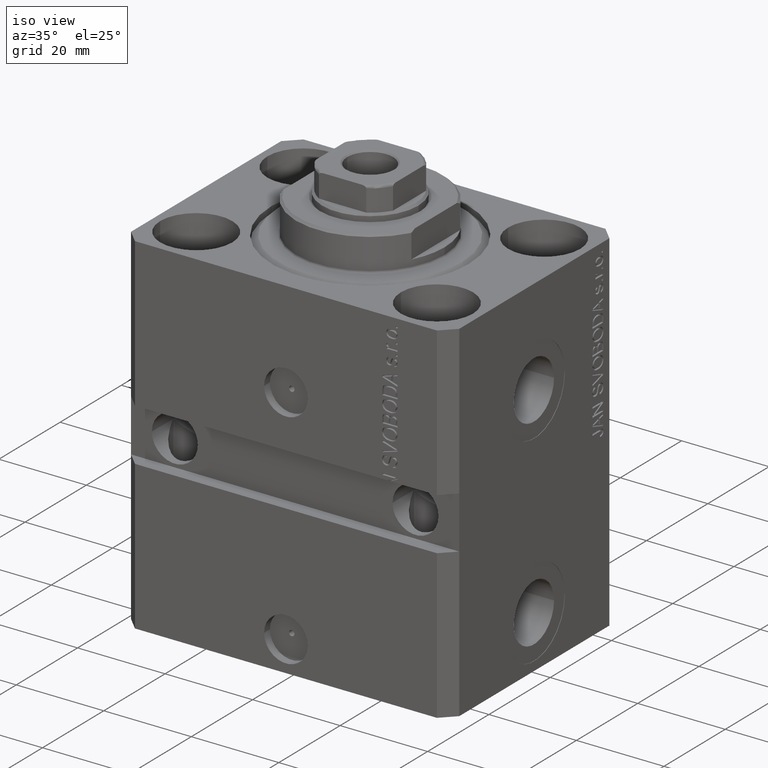
[diagram: clean part render]
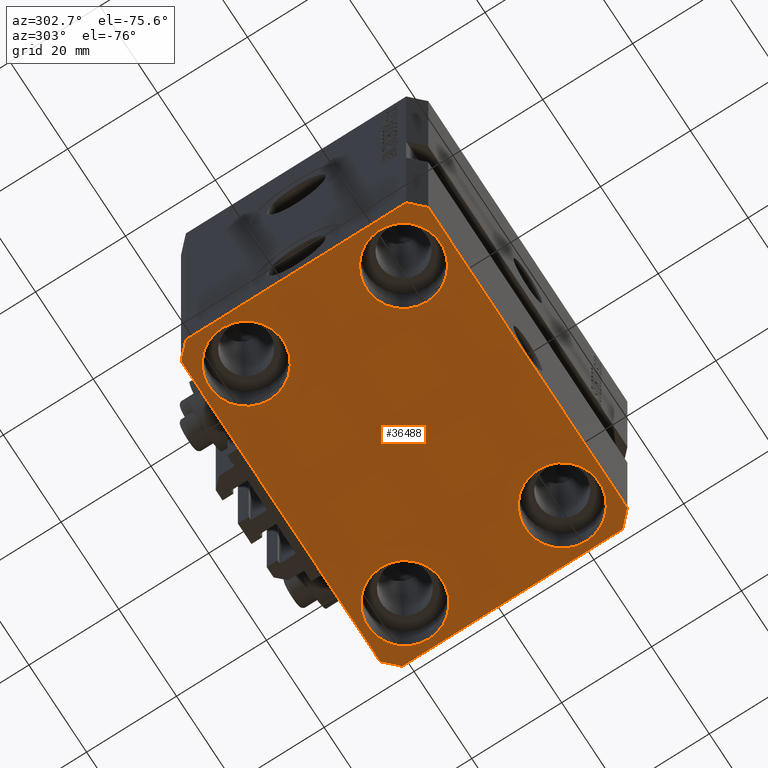
[diagram: tour spotlight — one face highlighted and labeled with its STEP entity id]
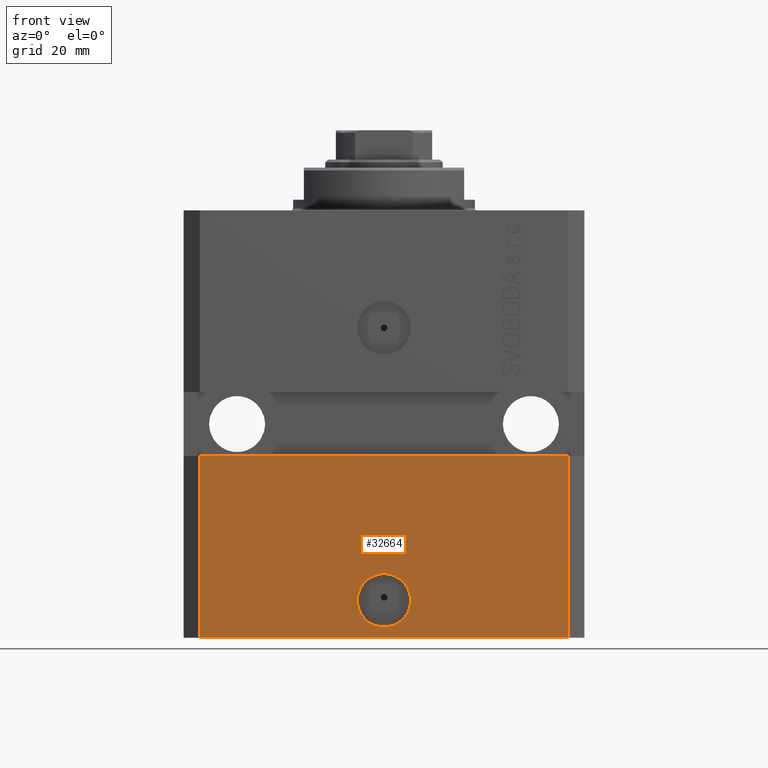
[diagram: tour spotlight — one face highlighted and labeled with its STEP entity id]
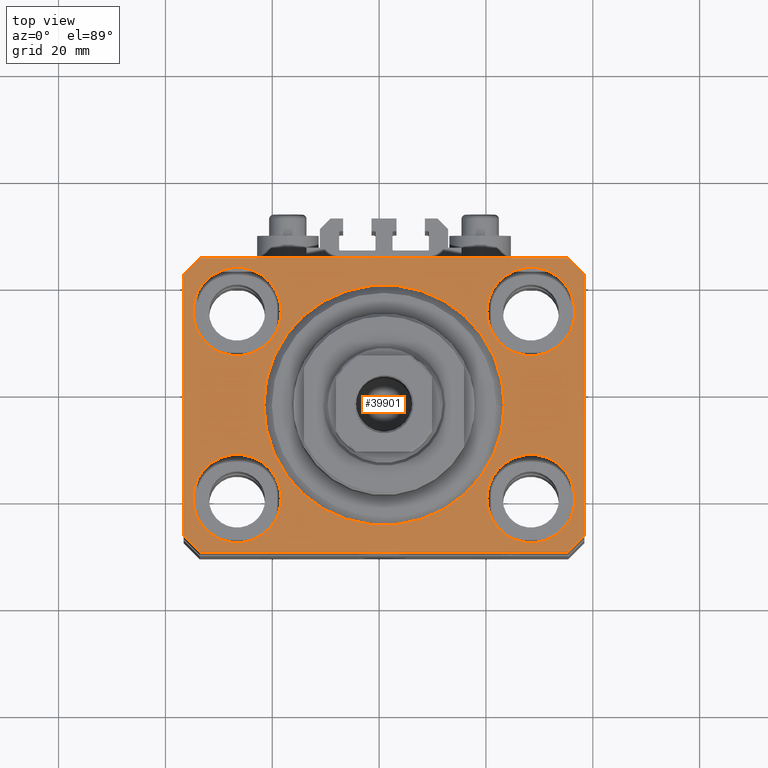
[diagram: tour spotlight — one face highlighted and labeled with its STEP entity id]
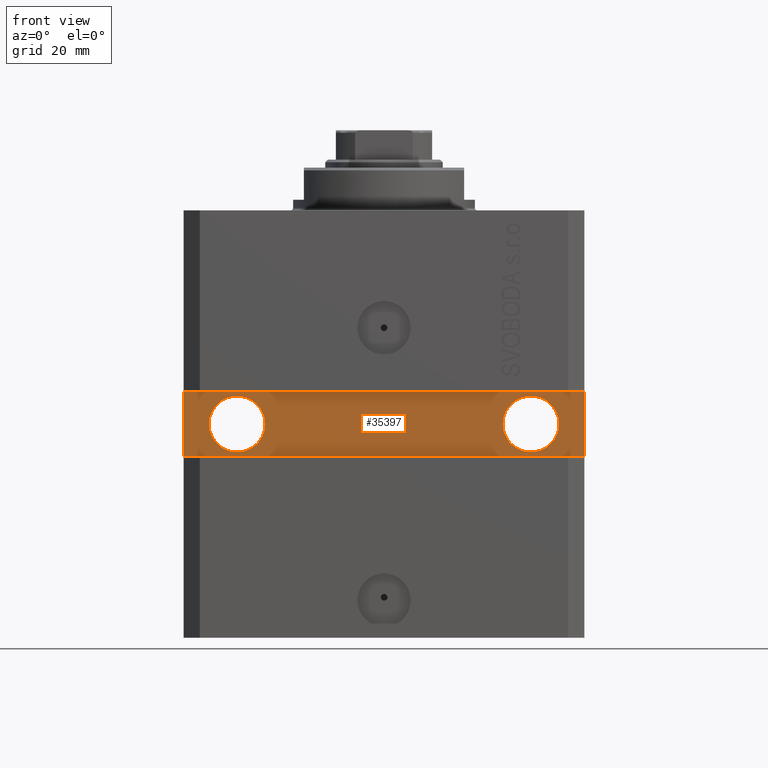
[diagram: tour spotlight — one face highlighted and labeled with its STEP entity id]
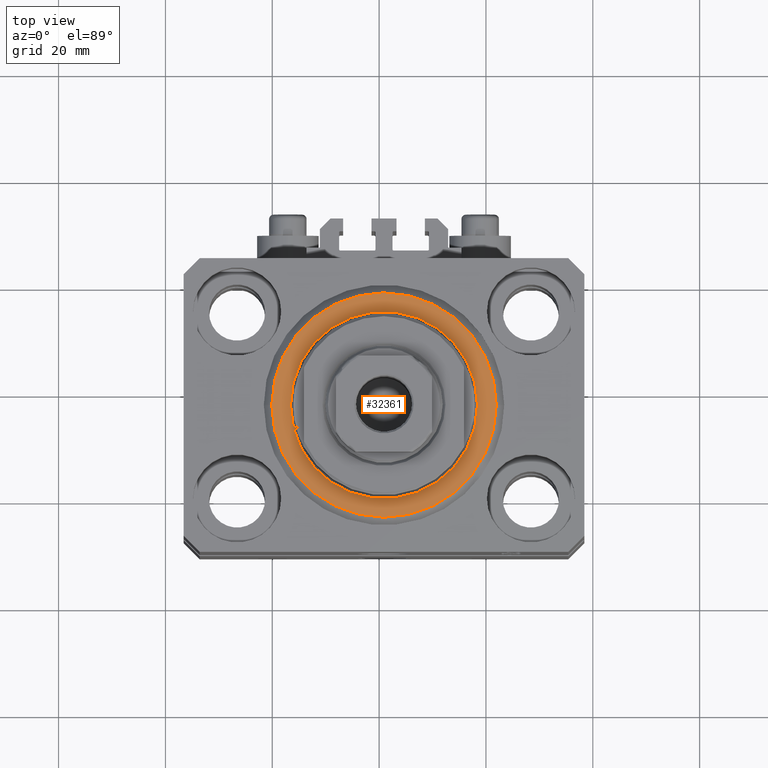
[diagram: tour spotlight — one face highlighted and labeled with its STEP entity id]
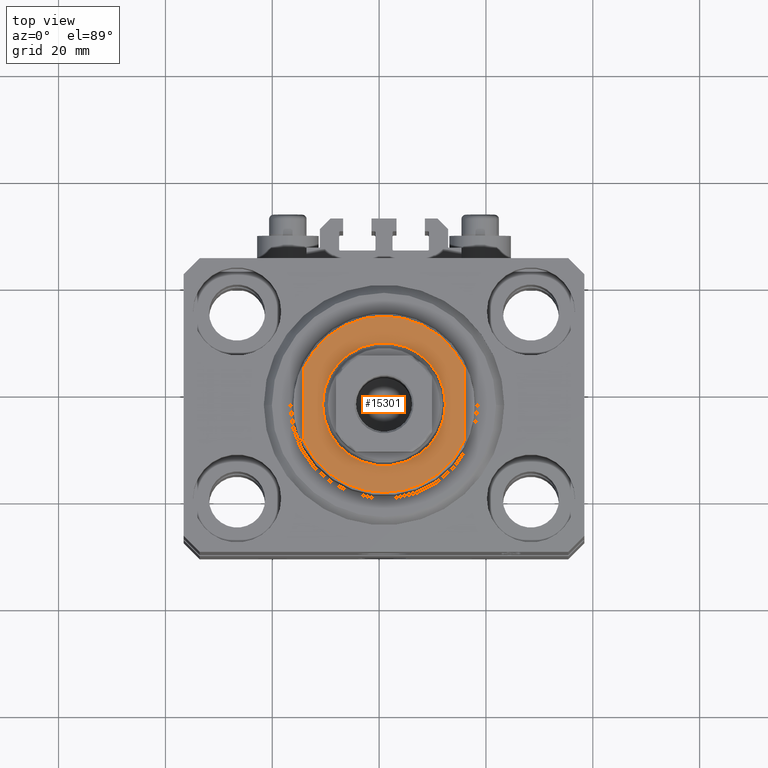
[diagram: tour spotlight — one face highlighted and labeled with its STEP entity id]
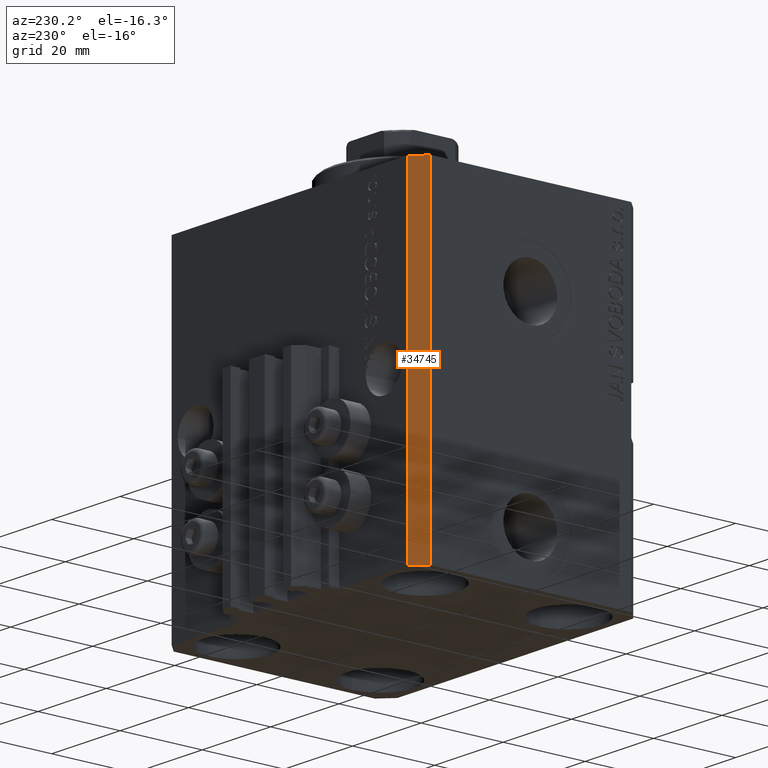
[diagram: tour spotlight — one face highlighted and labeled with its STEP entity id]
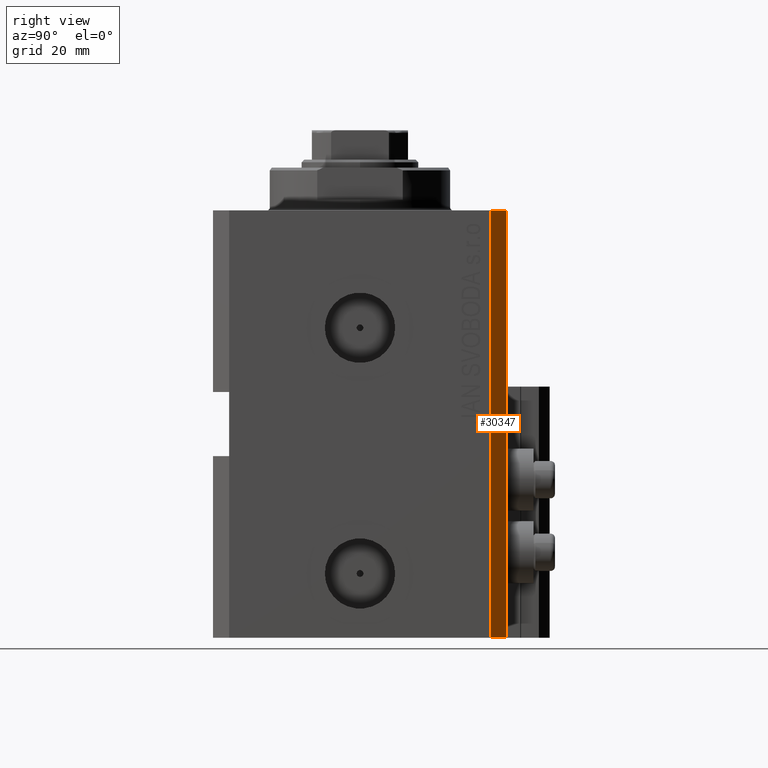
[diagram: tour spotlight — one face highlighted and labeled with its STEP entity id]
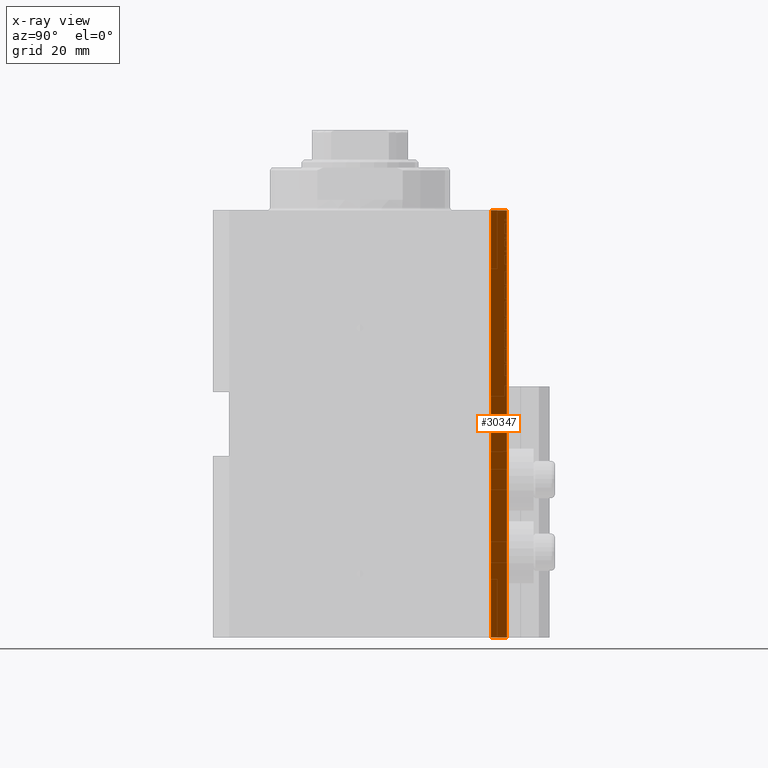
[diagram: x-ray of the same camera — body ghosted, this tour face saturated]
A machine part: a face-by-face anatomy tour. The part has 1080 B-rep faces; the first image is the clean iso view, then the 8 largest visible faces are spotlighted one at a time (largest first), each with its STEP entity span.

Face 1 — auxiliary view, entity #36488. In plain terms, the highlighted planar face has unit normal (0, 0, 1).
Definition (entity closure, byte-faithful):
#186 = EDGE_CURVE ( 'NONE', #39540, #45200, #2030, .T. ) ;
#345 = AXIS2_PLACEMENT_3D ( 'NONE', #2827, #35926, #10023 ) ;
#362 = CARTESIAN_POINT ( 'NONE',  ( 0.000000000000000000, 0.000000000000000000, -80.00000000000000000 ) ) ;
#1228 = CARTESIAN_POINT ( 'NONE',  ( -27.50000000000000355, 17.50000000000000000, -80.00000000000000000 ) ) ;
#1383 = DIRECTION ( 'NONE',  ( -0.000000000000000000, -0.000000000000000000, 1.000000000000000000 ) ) ;
#1864 = CARTESIAN_POINT ( 'NONE',  ( -37.49999999999999289, 24.50000000000000000, -80.00000000000000000 ) ) ;
#2030 = CIRCLE ( 'NONE', #20397, 8.250000000000000000 ) ;
#2815 = CARTESIAN_POINT ( 'NONE',  ( 34.49999999999999289, -27.49999999999999645, -80.00000000000000000 ) ) ;
#2827 = CARTESIAN_POINT ( 'NONE',  ( -27.50000000000000355, 17.50000000000000000, -80.00000000000000000 ) ) ;
#3054 = DIRECTION ( 'NONE',  ( 0.7071067811865474617, 0.7071067811865474617, 0.000000000000000000 ) ) ;
#3090 = VERTEX_POINT ( 'NONE', #45703 ) ;
#3623 = DIRECTION ( 'NONE',  ( -0.7071067811865471286, -0.7071067811865479058, 0.000000000000000000 ) ) ;
#3654 = DIRECTION ( 'NONE',  ( 1.076236605503979380E-14, 1.000000000000000000, 0.000000000000000000 ) ) ;
#4433 = FACE_BOUND ( 'NONE', #38189, .T. ) ;
#4504 = CIRCLE ( 'NONE', #13649, 8.250000000000000000 ) ;
#4602 = DIRECTION ( 'NONE',  ( -0.000000000000000000, -0.000000000000000000, 1.000000000000000000 ) ) ;
#5376 = DIRECTION ( 'NONE',  ( -0.000000000000000000, -0.000000000000000000, 1.000000000000000000 ) ) ;
#5968 = DIRECTION ( 'NONE',  ( -0.000000000000000000, -0.000000000000000000, 1.000000000000000000 ) ) ;
#7260 = VERTEX_POINT ( 'NONE', #33310 ) ;
#7634 = CIRCLE ( 'NONE', #34436, 8.250000000000000000 ) ;
#7790 = EDGE_LOOP ( 'NONE', ( #33621, #10705 ) ) ;
#8448 = VERTEX_POINT ( 'NONE', #19585 ) ;
#8561 = CARTESIAN_POINT ( 'NONE',  ( 37.49999999999999289, -24.50000000000000000, -80.00000000000000000 ) ) ;
#9037 = DIRECTION ( 'NONE',  ( 1.000000000000000000, 0.000000000000000000, 0.000000000000000000 ) ) ;
#9167 = CARTESIAN_POINT ( 'NONE',  ( -19.25000000000000355, -17.50000000000000000, -80.00000000000000000 ) ) ;
#10023 = DIRECTION ( 'NONE',  ( 1.000000000000000000, 0.000000000000000000, 0.000000000000000000 ) ) ;
#10705 = ORIENTED_EDGE ( 'NONE', *, *, #25261, .T. ) ;
#11510 = LINE ( 'NONE', #33331, #44860 ) ;
#12000 = VERTEX_POINT ( 'NONE', #39314 ) ;
#12067 = VECTOR ( 'NONE', #43579, 1000.000000000000000 ) ;
#12740 = VECTOR ( 'NONE', #44918, 1000.000000000000000 ) ;
#13283 = EDGE_CURVE ( 'NONE', #45200, #39540, #32923, .T. ) ;
#13649 = AXIS2_PLACEMENT_3D ( 'NONE', #1228, #4602, #30456 ) ;
#13752 = DIRECTION ( 'NONE',  ( -0.000000000000000000, -0.000000000000000000, 1.000000000000000000 ) ) ;
#14321 = DIRECTION ( 'NONE',  ( 1.000000000000000000, 0.000000000000000000, 0.000000000000000000 ) ) ;
#14874 = CIRCLE ( 'NONE', #345, 8.250000000000000000 ) ;
#14961 = DIRECTION ( 'NONE',  ( 0.000000000000000000, 0.000000000000000000, 1.000000000000000000 ) ) ;
#16075 = CARTESIAN_POINT ( 'NONE',  ( -37.49999999999999289, -24.50000000000000000, -80.00000000000000000 ) ) ;
#16517 = VERTEX_POINT ( 'NONE', #20143 ) ;
#16738 = CARTESIAN_POINT ( 'NONE',  ( 27.50000000000000355, -17.50000000000000000, -80.00000000000000000 ) ) ;
#17540 = EDGE_CURVE ( 'NONE', #37110, #34779, #36518, .T. ) ;
#18128 = EDGE_LOOP ( 'NONE', ( #24871, #31498 ) ) ;
#18581 = VERTEX_POINT ( 'NONE', #30475 ) ;
#18587 = PLANE ( 'NONE',  #32848 ) ;
#18805 = CARTESIAN_POINT ( 'NONE',  ( 34.49999999999999289, -27.49999999999999645, -80.00000000000000000 ) ) ;
#19203 = ORIENTED_EDGE ( 'NONE', *, *, #38536, .F. ) ;
#19585 = CARTESIAN_POINT ( 'NONE',  ( 35.74999999999999289, 17.50000000000001066, -80.00000000000000000 ) ) ;
#19766 = CARTESIAN_POINT ( 'NONE',  ( -37.49999999999999289, -24.50000000000000000, -80.00000000000000000 ) ) ;
#20143 = CARTESIAN_POINT ( 'NONE',  ( 19.25000000000000000, 17.50000000000001066, -80.00000000000000000 ) ) ;
#20215 = DIRECTION ( 'NONE',  ( 1.000000000000000000, 0.000000000000000000, 0.000000000000000000 ) ) ;
#20397 = AXIS2_PLACEMENT_3D ( 'NONE', #30840, #1383, #9037 ) ;
#20451 = ORIENTED_EDGE ( 'NONE', *, *, #17540, .F. ) ;
#20599 = ORIENTED_EDGE ( 'NONE', *, *, #36600, .T. ) ;
#20786 = DIRECTION ( 'NONE',  ( -0.000000000000000000, -0.000000000000000000, 1.000000000000000000 ) ) ;
#22153 = FACE_BOUND ( 'NONE', #7790, .T. ) ;
#22867 = FACE_BOUND ( 'NONE', #18128, .T. ) ;
#24010 = AXIS2_PLACEMENT_3D ( 'NONE', #16738, #20786, #27739 ) ;
#24090 = EDGE_LOOP ( 'NONE', ( #38389, #44616, #20451, #44522, #43370, #19203, #39316, #35517 ) ) ;
#24486 = LINE ( 'NONE', #43164, #24496 ) ;
#24496 = VECTOR ( 'NONE', #24730, 1000.000000000000000 ) ;
#24500 = AXIS2_PLACEMENT_3D ( 'NONE', #32326, #5968, #14321 ) ;
#24730 = DIRECTION ( 'NONE',  ( 1.000000000000000000, 0.000000000000000000, 0.000000000000000000 ) ) ;
#24856 = LINE ( 'NONE', #2815, #32619 ) ;
#24871 = ORIENTED_EDGE ( 'NONE', *, *, #26191, .T. ) ;
#24982 = ORIENTED_EDGE ( 'NONE', *, *, #13283, .T. ) ;
#25261 = EDGE_CURVE ( 'NONE', #45911, #18581, #43127, .T. ) ;
#25529 = DIRECTION ( 'NONE',  ( 1.000000000000000000, 0.000000000000000000, -0.000000000000000000 ) ) ;
#26191 = EDGE_CURVE ( 'NONE', #30555, #12000, #14874, .T. ) ;
#26966 = CARTESIAN_POINT ( 'NONE',  ( -37.49999999999999289, 24.50000000000000000, -80.00000000000000000 ) ) ;
#27189 = LINE ( 'NONE', #26966, #12740 ) ;
#27739 = DIRECTION ( 'NONE',  ( 1.000000000000000000, 0.000000000000000000, 0.000000000000000000 ) ) ;
#28066 = CARTESIAN_POINT ( 'NONE',  ( -35.75000000000000711, 17.50000000000000000, -80.00000000000000000 ) ) ;
#28283 = ORIENTED_EDGE ( 'NONE', *, *, #186, .T. ) ;
#28317 = VECTOR ( 'NONE', #45855, 1000.000000000000000 ) ;
#28977 = CARTESIAN_POINT ( 'NONE',  ( 27.49999999999999645, 17.50000000000001066, -80.00000000000000000 ) ) ;
#29154 = CARTESIAN_POINT ( 'NONE',  ( 37.50000000000051870, 24.49999999999995381, -80.00000000000000000 ) ) ;
#29518 = EDGE_CURVE ( 'NONE', #36544, #37110, #24856, .T. ) ;
#29600 = EDGE_LOOP ( 'NONE', ( #40083, #20599 ) ) ;
#30456 = DIRECTION ( 'NONE',  ( 1.000000000000000000, 0.000000000000000000, 0.000000000000000000 ) ) ;
#30475 = CARTESIAN_POINT ( 'NONE',  ( 19.25000000000000000, -17.50000000000000000, -80.00000000000000000 ) ) ;
#30555 = VERTEX_POINT ( 'NONE', #28066 ) ;
#30566 = DIRECTION ( 'NONE',  ( -0.7071067811865356934, 0.7071067811865594521, 0.000000000000000000 ) ) ;
#30708 = EDGE_CURVE ( 'NONE', #7260, #40061, #11510, .T. ) ;
#30840 = CARTESIAN_POINT ( 'NONE',  ( -27.50000000000000355, -17.50000000000000000, -80.00000000000000000 ) ) ;
#31260 = LINE ( 'NONE', #19766, #28317 ) ;
#31266 = EDGE_CURVE ( 'NONE', #40061, #39840, #27189, .T. ) ;
#31498 = ORIENTED_EDGE ( 'NONE', *, *, #34691, .T. ) ;
#31737 = DIRECTION ( 'NONE',  ( 1.000000000000000000, 0.000000000000000000, 0.000000000000000000 ) ) ;
#32020 = EDGE_CURVE ( 'NONE', #34779, #3090, #40656, .T. ) ;
#32200 = CARTESIAN_POINT ( 'NONE',  ( -35.75000000000000711, -17.50000000000000000, -80.00000000000000000 ) ) ;
#32326 = CARTESIAN_POINT ( 'NONE',  ( -27.50000000000000355, -17.50000000000000000, -80.00000000000000000 ) ) ;
#32619 = VECTOR ( 'NONE', #3054, 1000.000000000000114 ) ;
#32786 = CARTESIAN_POINT ( 'NONE',  ( -34.49999999999998579, -27.49999999999999645, -80.00000000000000000 ) ) ;
#32848 = AXIS2_PLACEMENT_3D ( 'NONE', #362, #14961, #25529 ) ;
#32923 = CIRCLE ( 'NONE', #24500, 8.250000000000000000 ) ;
#33288 = LINE ( 'NONE', #33525, #12067 ) ;
#33310 = CARTESIAN_POINT ( 'NONE',  ( -34.49999999999999289, 27.50000000000000000, -80.00000000000000000 ) ) ;
#33331 = CARTESIAN_POINT ( 'NONE',  ( -34.49999999999999289, 27.50000000000000000, -80.00000000000000000 ) ) ;
#33525 = CARTESIAN_POINT ( 'NONE',  ( 34.50000000000056843, 27.50000000000000000, -80.00000000000000000 ) ) ;
#33621 = ORIENTED_EDGE ( 'NONE', *, *, #38322, .T. ) ;
#33767 = EDGE_CURVE ( 'NONE', #3090, #7260, #33288, .T. ) ;
#33781 = EDGE_CURVE ( 'NONE', #16517, #8448, #44971, .T. ) ;
#33918 = FACE_BOUND ( 'NONE', #29600, .T. ) ;
#34436 = AXIS2_PLACEMENT_3D ( 'NONE', #47057, #13752, #31737 ) ;
#34691 = EDGE_CURVE ( 'NONE', #12000, #30555, #4504, .T. ) ;
#34779 = VERTEX_POINT ( 'NONE', #41712 ) ;
#35517 = ORIENTED_EDGE ( 'NONE', *, *, #30708, .F. ) ;
#35926 = DIRECTION ( 'NONE',  ( -0.000000000000000000, -0.000000000000000000, 1.000000000000000000 ) ) ;
#36439 = DIRECTION ( 'NONE',  ( -0.000000000000000000, -0.000000000000000000, 1.000000000000000000 ) ) ;
#36488 = ADVANCED_FACE ( 'NONE', ( #4433, #22153, #33918, #22867, #37522 ), #18587, .F. ) ;
#36518 = LINE ( 'NONE', #40559, #42898 ) ;
#36544 = VERTEX_POINT ( 'NONE', #18805 ) ;
#36600 = EDGE_CURVE ( 'NONE', #8448, #16517, #47372, .T. ) ;
#36967 = VERTEX_POINT ( 'NONE', #32786 ) ;
#37110 = VERTEX_POINT ( 'NONE', #8561 ) ;
#37522 = FACE_OUTER_BOUND ( 'NONE', #24090, .T. ) ;
#38189 = EDGE_LOOP ( 'NONE', ( #24982, #28283 ) ) ;
#38218 = CARTESIAN_POINT ( 'NONE',  ( 27.49999999999999645, 17.50000000000001066, -80.00000000000000000 ) ) ;
#38237 = AXIS2_PLACEMENT_3D ( 'NONE', #38218, #5376, #20215 ) ;
#38322 = EDGE_CURVE ( 'NONE', #18581, #45911, #7634, .T. ) ;
#38389 = ORIENTED_EDGE ( 'NONE', *, *, #33767, .F. ) ;
#38536 = EDGE_CURVE ( 'NONE', #39840, #36967, #31260, .T. ) ;
#38744 = EDGE_CURVE ( 'NONE', #36967, #36544, #24486, .T. ) ;
#38860 = VECTOR ( 'NONE', #30566, 1000.000000000000114 ) ;
#39314 = CARTESIAN_POINT ( 'NONE',  ( -19.25000000000000355, 17.50000000000000000, -80.00000000000000000 ) ) ;
#39316 = ORIENTED_EDGE ( 'NONE', *, *, #31266, .F. ) ;
#39540 = VERTEX_POINT ( 'NONE', #9167 ) ;
#39840 = VERTEX_POINT ( 'NONE', #16075 ) ;
#40061 = VERTEX_POINT ( 'NONE', #1864 ) ;
#40083 = ORIENTED_EDGE ( 'NONE', *, *, #33781, .T. ) ;
#40559 = CARTESIAN_POINT ( 'NONE',  ( 37.49999999999999289, -24.50000000000000000, -80.00000000000000000 ) ) ;
#40656 = LINE ( 'NONE', #29154, #38860 ) ;
#41712 = CARTESIAN_POINT ( 'NONE',  ( 37.50000000000051870, 24.49999999999995381, -80.00000000000000000 ) ) ;
#42898 = VECTOR ( 'NONE', #3654, 1000.000000000000000 ) ;
#43127 = CIRCLE ( 'NONE', #24010, 8.250000000000000000 ) ;
#43164 = CARTESIAN_POINT ( 'NONE',  ( -34.49999999999998579, -27.49999999999999645, -80.00000000000000000 ) ) ;
#43370 = ORIENTED_EDGE ( 'NONE', *, *, #38744, .F. ) ;
#43579 = DIRECTION ( 'NONE',  ( -1.000000000000000000, 0.000000000000000000, 0.000000000000000000 ) ) ;
#43815 = DIRECTION ( 'NONE',  ( 1.000000000000000000, 0.000000000000000000, 0.000000000000000000 ) ) ;
#44522 = ORIENTED_EDGE ( 'NONE', *, *, #29518, .F. ) ;
#44616 = ORIENTED_EDGE ( 'NONE', *, *, #32020, .F. ) ;
#44860 = VECTOR ( 'NONE', #3623, 1000.000000000000000 ) ;
#44918 = DIRECTION ( 'NONE',  ( 0.000000000000000000, -1.000000000000000000, 0.000000000000000000 ) ) ;
#44971 = CIRCLE ( 'NONE', #45715, 8.249999999999992895 ) ;
#45200 = VERTEX_POINT ( 'NONE', #32200 ) ;
#45703 = CARTESIAN_POINT ( 'NONE',  ( 34.50000000000056843, 27.50000000000000000, -80.00000000000000000 ) ) ;
#45715 = AXIS2_PLACEMENT_3D ( 'NONE', #28977, #36439, #43815 ) ;
#45855 = DIRECTION ( 'NONE',  ( 0.7071067811865483499, -0.7071067811865466846, 0.000000000000000000 ) ) ;
#45911 = VERTEX_POINT ( 'NONE', #46687 ) ;
#46687 = CARTESIAN_POINT ( 'NONE',  ( 35.75000000000000711, -17.50000000000000000, -80.00000000000000000 ) ) ;
#47057 = CARTESIAN_POINT ( 'NONE',  ( 27.50000000000000355, -17.50000000000000000, -80.00000000000000000 ) ) ;
#47372 = CIRCLE ( 'NONE', #38237, 8.249999999999992895 ) ;

Face 2 — front view, entity #32664. In plain terms, the highlighted planar face has unit normal (0, -1, 0).
Definition (entity closure, byte-faithful):
#166 = DIRECTION ( 'NONE',  ( 1.176083712526788232E-16, -1.000000000000000000, 0.000000000000000000 ) ) ;
#500 = CIRCLE ( 'NONE', #18868, 5.000000000000006217 ) ;
#810 = EDGE_CURVE ( 'NONE', #40010, #30981, #45978, .T. ) ;
#1145 = EDGE_CURVE ( 'NONE', #24958, #2424, #500, .T. ) ;
#1464 = PLANE ( 'NONE',  #12807 ) ;
#2424 = VERTEX_POINT ( 'NONE', #33243 ) ;
#4006 = AXIS2_PLACEMENT_3D ( 'NONE', #43516, #10239, #40188 ) ;
#7619 = EDGE_LOOP ( 'NONE', ( #21875, #35284, #28607, #37180 ) ) ;
#8887 = ORIENTED_EDGE ( 'NONE', *, *, #47111, .F. ) ;
#10239 = DIRECTION ( 'NONE',  ( 1.176083712526788232E-16, -1.000000000000000000, 0.000000000000000000 ) ) ;
#10987 = CARTESIAN_POINT ( 'NONE',  ( 34.49999999999999289, -27.49999999999999289, -46.00000000000000000 ) ) ;
#11021 = ORIENTED_EDGE ( 'NONE', *, *, #1145, .F. ) ;
#11257 = VECTOR ( 'NONE', #15653, 1000.000000000000000 ) ;
#12807 = AXIS2_PLACEMENT_3D ( 'NONE', #45054, #26858, #41706 ) ;
#15653 = DIRECTION ( 'NONE',  ( 0.000000000000000000, 0.000000000000000000, 1.000000000000000000 ) ) ;
#16773 = DIRECTION ( 'NONE',  ( 1.000000000000000000, 9.251858538542972814E-17, 0.000000000000000000 ) ) ;
#18805 = CARTESIAN_POINT ( 'NONE',  ( 34.49999999999999289, -27.49999999999999645, -80.00000000000000000 ) ) ;
#18868 = AXIS2_PLACEMENT_3D ( 'NONE', #21941, #166, #32290 ) ;
#20190 = LINE ( 'NONE', #37738, #47210 ) ;
#21875 = ORIENTED_EDGE ( 'NONE', *, *, #810, .F. ) ;
#21941 = CARTESIAN_POINT ( 'NONE',  ( 0.000000000000000000, -27.49999999999999645, -73.00000000000000000 ) ) ;
#22596 = LINE ( 'NONE', #23079, #11257 ) ;
#23079 = CARTESIAN_POINT ( 'NONE',  ( -34.49999999999998579, -27.49999999999999645, -80.00000000000000000 ) ) ;
#24486 = LINE ( 'NONE', #43164, #24496 ) ;
#24496 = VECTOR ( 'NONE', #24730, 1000.000000000000000 ) ;
#24730 = DIRECTION ( 'NONE',  ( 1.000000000000000000, 0.000000000000000000, 0.000000000000000000 ) ) ;
#24958 = VERTEX_POINT ( 'NONE', #41483 ) ;
#25842 = CARTESIAN_POINT ( 'NONE',  ( -34.49999999999998579, -27.50000000000000000, -46.00000000000000000 ) ) ;
#26858 = DIRECTION ( 'NONE',  ( 0.000000000000000000, -1.000000000000000000, 0.000000000000000000 ) ) ;
#27091 = FACE_OUTER_BOUND ( 'NONE', #7619, .T. ) ;
#28607 = ORIENTED_EDGE ( 'NONE', *, *, #38744, .T. ) ;
#28988 = EDGE_CURVE ( 'NONE', #36544, #30981, #20190, .T. ) ;
#30450 = FACE_BOUND ( 'NONE', #43266, .T. ) ;
#30981 = VERTEX_POINT ( 'NONE', #10987 ) ;
#31650 = EDGE_CURVE ( 'NONE', #36967, #40010, #22596, .T. ) ;
#32290 = DIRECTION ( 'NONE',  ( 1.000000000000000000, 0.000000000000000000, 0.000000000000000000 ) ) ;
#32664 = ADVANCED_FACE ( 'NONE', ( #30450, #27091 ), #1464, .T. ) ;
#32786 = CARTESIAN_POINT ( 'NONE',  ( -34.49999999999998579, -27.49999999999999645, -80.00000000000000000 ) ) ;
#33243 = CARTESIAN_POINT ( 'NONE',  ( 5.000000000000006217, -27.49999999999999645, -73.00000000000000000 ) ) ;
#35284 = ORIENTED_EDGE ( 'NONE', *, *, #31650, .F. ) ;
#36544 = VERTEX_POINT ( 'NONE', #18805 ) ;
#36967 = VERTEX_POINT ( 'NONE', #32786 ) ;
#37180 = ORIENTED_EDGE ( 'NONE', *, *, #28988, .T. ) ;
#37738 = CARTESIAN_POINT ( 'NONE',  ( 34.49999999999999289, -27.49999999999999645, -80.00000000000000000 ) ) ;
#38744 = EDGE_CURVE ( 'NONE', #36967, #36544, #24486, .T. ) ;
#40010 = VERTEX_POINT ( 'NONE', #25842 ) ;
#40188 = DIRECTION ( 'NONE',  ( 1.000000000000000000, 0.000000000000000000, 0.000000000000000000 ) ) ;
#41483 = CARTESIAN_POINT ( 'NONE',  ( -5.000000000000006217, -27.49999999999999645, -73.00000000000000000 ) ) ;
#41537 = DIRECTION ( 'NONE',  ( 0.000000000000000000, 0.000000000000000000, 1.000000000000000000 ) ) ;
#41706 = DIRECTION ( 'NONE',  ( 0.000000000000000000, -0.000000000000000000, -1.000000000000000000 ) ) ;
#42627 = CARTESIAN_POINT ( 'NONE',  ( -37.50000000000000000, -27.50000000000000000, -46.00000000000000000 ) ) ;
#43164 = CARTESIAN_POINT ( 'NONE',  ( -34.49999999999998579, -27.49999999999999645, -80.00000000000000000 ) ) ;
#43266 = EDGE_LOOP ( 'NONE', ( #8887, #11021 ) ) ;
#43516 = CARTESIAN_POINT ( 'NONE',  ( 0.000000000000000000, -27.49999999999999645, -73.00000000000000000 ) ) ;
#44839 = VECTOR ( 'NONE', #16773, 1000.000000000000000 ) ;
#45054 = CARTESIAN_POINT ( 'NONE',  ( -34.49999999999998579, -27.49999999999999645, -80.00000000000000000 ) ) ;
#45978 = LINE ( 'NONE', #42627, #44839 ) ;
#46102 = CIRCLE ( 'NONE', #4006, 5.000000000000006217 ) ;
#47111 = EDGE_CURVE ( 'NONE', #2424, #24958, #46102, .T. ) ;
#47210 = VECTOR ( 'NONE', #41537, 1000.000000000000000 ) ;

Face 3 — top view, entity #39901. In plain terms, the highlighted planar face has unit normal (0, 0, 1).
Definition (entity closure, byte-faithful):
#12 = ORIENTED_EDGE ( 'NONE', *, *, #9573, .T. ) ;
#59 = ORIENTED_EDGE ( 'NONE', *, *, #3062, .F. ) ;
#62 = DIRECTION ( 'NONE',  ( -1.000000000000000000, 0.000000000000000000, 0.000000000000000000 ) ) ;
#1325 = CIRCLE ( 'NONE', #4403, 8.250000000000000000 ) ;
#1515 = CIRCLE ( 'NONE', #28284, 8.250000000000000000 ) ;
#1905 = DIRECTION ( 'NONE',  ( 1.000000000000000000, 0.000000000000000000, 0.000000000000000000 ) ) ;
#2176 = ORIENTED_EDGE ( 'NONE', *, *, #15626, .F. ) ;
#2180 = CARTESIAN_POINT ( 'NONE',  ( -37.49999999999999289, 24.50000000000000000, 0.000000000000000000 ) ) ;
#3062 = EDGE_CURVE ( 'NONE', #12013, #41511, #14983, .T. ) ;
#3401 = EDGE_CURVE ( 'NONE', #17650, #26148, #41614, .T. ) ;
#3522 = EDGE_LOOP ( 'NONE', ( #33084, #27660, #46430, #12, #24492, #26388, #43171, #6042 ) ) ;
#3570 = ORIENTED_EDGE ( 'NONE', *, *, #30372, .F. ) ;
#3636 = LINE ( 'NONE', #36724, #35410 ) ;
#4069 = ORIENTED_EDGE ( 'NONE', *, *, #22569, .F. ) ;
#4285 = DIRECTION ( 'NONE',  ( 0.000000000000000000, 0.000000000000000000, 1.000000000000000000 ) ) ;
#4403 = AXIS2_PLACEMENT_3D ( 'NONE', #12081, #23344, #41327 ) ;
#4847 = VERTEX_POINT ( 'NONE', #43131 ) ;
#4854 = CARTESIAN_POINT ( 'NONE',  ( 37.49999999999999289, -24.50000000000000000, 0.000000000000000000 ) ) ;
#5216 = AXIS2_PLACEMENT_3D ( 'NONE', #22016, #40482, #6951 ) ;
#5320 = VECTOR ( 'NONE', #42518, 1000.000000000000000 ) ;
#5490 = DIRECTION ( 'NONE',  ( 1.000000000000000000, 0.000000000000000000, 0.000000000000000000 ) ) ;
#6042 = ORIENTED_EDGE ( 'NONE', *, *, #32201, .T. ) ;
#6107 = DIRECTION ( 'NONE',  ( 1.000000000000000000, 0.000000000000000000, 0.000000000000000000 ) ) ;
#6113 = LINE ( 'NONE', #35365, #5320 ) ;
#6192 = VERTEX_POINT ( 'NONE', #38526 ) ;
#6456 = EDGE_CURVE ( 'NONE', #32662, #22974, #1325, .T. ) ;
#6951 = DIRECTION ( 'NONE',  ( 1.000000000000000000, 0.000000000000000000, 0.000000000000000000 ) ) ;
#7389 = DIRECTION ( 'NONE',  ( 1.000000000000000000, 0.000000000000000000, 0.000000000000000000 ) ) ;
#7805 = VERTEX_POINT ( 'NONE', #46627 ) ;
#7959 = AXIS2_PLACEMENT_3D ( 'NONE', #9435, #13726, #35335 ) ;
#8014 = EDGE_CURVE ( 'NONE', #6192, #27013, #45841, .T. ) ;
#8223 = VECTOR ( 'NONE', #35854, 1000.000000000000114 ) ;
#8320 = ORIENTED_EDGE ( 'NONE', *, *, #33831, .F. ) ;
#8569 = CARTESIAN_POINT ( 'NONE',  ( -34.49999999999998579, -27.49999999999999645, 0.000000000000000000 ) ) ;
#8637 = LINE ( 'NONE', #11508, #41198 ) ;
#8779 = DIRECTION ( 'NONE',  ( 0.000000000000000000, -1.000000000000000000, 0.000000000000000000 ) ) ;
#9066 = CARTESIAN_POINT ( 'NONE',  ( -37.49999999999999289, -24.50000000000000000, 0.000000000000000000 ) ) ;
#9435 = CARTESIAN_POINT ( 'NONE',  ( -27.50000000000000355, -17.50000000000000000, 0.000000000000000000 ) ) ;
#9573 = EDGE_CURVE ( 'NONE', #26148, #24290, #8637, .T. ) ;
#9830 = CARTESIAN_POINT ( 'NONE',  ( 0.000000000000000000, 0.000000000000000000, 0.000000000000000000 ) ) ;
#10068 = FACE_BOUND ( 'NONE', #47229, .T. ) ;
#10142 = VERTEX_POINT ( 'NONE', #36591 ) ;
#10176 = CIRCLE ( 'NONE', #33120, 8.250000000000000000 ) ;
#10439 = AXIS2_PLACEMENT_3D ( 'NONE', #31889, #28272, #46011 ) ;
#10535 = CIRCLE ( 'NONE', #5216, 8.249999999999992895 ) ;
#10684 = VECTOR ( 'NONE', #1905, 1000.000000000000000 ) ;
#11116 = EDGE_CURVE ( 'NONE', #24290, #6192, #22528, .T. ) ;
#11484 = EDGE_CURVE ( 'NONE', #27013, #43874, #6113, .T. ) ;
#11508 = CARTESIAN_POINT ( 'NONE',  ( -37.49999999999999289, -24.50000000000000000, 0.000000000000000000 ) ) ;
#12013 = VERTEX_POINT ( 'NONE', #24428 ) ;
#12081 = CARTESIAN_POINT ( 'NONE',  ( -27.50000000000000355, 17.50000000000000000, 0.000000000000000000 ) ) ;
#12447 = DIRECTION ( 'NONE',  ( -0.7071067811865471286, -0.7071067811865479058, 0.000000000000000000 ) ) ;
#13094 = AXIS2_PLACEMENT_3D ( 'NONE', #16693, #24582, #17173 ) ;
#13278 = CARTESIAN_POINT ( 'NONE',  ( 27.50000000000000355, -17.50000000000000000, 0.000000000000000000 ) ) ;
#13726 = DIRECTION ( 'NONE',  ( 0.000000000000000000, 0.000000000000000000, 1.000000000000000000 ) ) ;
#14983 = CIRCLE ( 'NONE', #30386, 8.250000000000000000 ) ;
#15626 = EDGE_CURVE ( 'NONE', #4847, #7805, #45890, .T. ) ;
#15741 = CARTESIAN_POINT ( 'NONE',  ( 27.50000000000000355, -17.50000000000000000, 0.000000000000000000 ) ) ;
#15981 = CARTESIAN_POINT ( 'NONE',  ( -37.49999999999999289, 24.50000000000000000, 0.000000000000000000 ) ) ;
#16693 = CARTESIAN_POINT ( 'NONE',  ( -27.50000000000000355, 17.50000000000000000, 0.000000000000000000 ) ) ;
#17027 = FACE_BOUND ( 'NONE', #46389, .T. ) ;
#17173 = DIRECTION ( 'NONE',  ( 1.000000000000000000, 0.000000000000000000, 0.000000000000000000 ) ) ;
#17650 = VERTEX_POINT ( 'NONE', #2180 ) ;
#18299 = ORIENTED_EDGE ( 'NONE', *, *, #44759, .F. ) ;
#19108 = DIRECTION ( 'NONE',  ( 0.000000000000000000, 0.000000000000000000, 1.000000000000000000 ) ) ;
#19379 = CARTESIAN_POINT ( 'NONE',  ( -22.50000000000000355, 2.755455298081545172E-15, 0.000000000000000000 ) ) ;
#19665 = CARTESIAN_POINT ( 'NONE',  ( -19.25000000000000355, 17.50000000000000000, 0.000000000000000000 ) ) ;
#19763 = DIRECTION ( 'NONE',  ( 0.000000000000000000, 0.000000000000000000, 1.000000000000000000 ) ) ;
#21294 = CARTESIAN_POINT ( 'NONE',  ( 27.49999999999999645, 17.50000000000001066, 0.000000000000000000 ) ) ;
#21452 = EDGE_CURVE ( 'NONE', #34011, #46827, #3636, .T. ) ;
#21959 = VECTOR ( 'NONE', #12447, 1000.000000000000000 ) ;
#22016 = CARTESIAN_POINT ( 'NONE',  ( 27.49999999999999645, 17.50000000000001066, 0.000000000000000000 ) ) ;
#22025 = CIRCLE ( 'NONE', #35859, 22.50000000000000355 ) ;
#22439 = CARTESIAN_POINT ( 'NONE',  ( 37.50000000000051870, 24.49999999999995381, 0.000000000000000000 ) ) ;
#22455 = DIRECTION ( 'NONE',  ( 1.000000000000000000, 0.000000000000000000, 0.000000000000000000 ) ) ;
#22511 = VERTEX_POINT ( 'NONE', #41148 ) ;
#22528 = LINE ( 'NONE', #42400, #10684 ) ;
#22569 = EDGE_CURVE ( 'NONE', #22511, #10142, #10176, .T. ) ;
#22974 = VERTEX_POINT ( 'NONE', #46027 ) ;
#23344 = DIRECTION ( 'NONE',  ( 0.000000000000000000, 0.000000000000000000, 1.000000000000000000 ) ) ;
#23581 = CARTESIAN_POINT ( 'NONE',  ( 34.49999999999999289, -27.49999999999999645, 0.000000000000000000 ) ) ;
#23905 = CARTESIAN_POINT ( 'NONE',  ( 34.50000000000056843, 27.50000000000000000, 0.000000000000000000 ) ) ;
#23961 = FACE_BOUND ( 'NONE', #29546, .T. ) ;
#24178 = EDGE_LOOP ( 'NONE', ( #8320, #2176 ) ) ;
#24290 = VERTEX_POINT ( 'NONE', #8569 ) ;
#24428 = CARTESIAN_POINT ( 'NONE',  ( -35.75000000000000711, -17.50000000000000000, 0.000000000000000000 ) ) ;
#24435 = DIRECTION ( 'NONE',  ( 1.000000000000000000, 0.000000000000000000, -0.000000000000000000 ) ) ;
#24492 = ORIENTED_EDGE ( 'NONE', *, *, #11116, .T. ) ;
#24582 = DIRECTION ( 'NONE',  ( 0.000000000000000000, 0.000000000000000000, 1.000000000000000000 ) ) ;
#24624 = EDGE_CURVE ( 'NONE', #41511, #12013, #27088, .T. ) ;
#24826 = VERTEX_POINT ( 'NONE', #36501 ) ;
#24908 = FACE_BOUND ( 'NONE', #38898, .T. ) ;
#25617 = CARTESIAN_POINT ( 'NONE',  ( 0.000000000000000000, 0.000000000000000000, 0.000000000000000000 ) ) ;
#26148 = VERTEX_POINT ( 'NONE', #9066 ) ;
#26388 = ORIENTED_EDGE ( 'NONE', *, *, #8014, .T. ) ;
#26845 = CARTESIAN_POINT ( 'NONE',  ( -34.49999999999999289, 27.50000000000000000, 0.000000000000000000 ) ) ;
#27013 = VERTEX_POINT ( 'NONE', #4854 ) ;
#27088 = CIRCLE ( 'NONE', #7959, 8.250000000000000000 ) ;
#27126 = ORIENTED_EDGE ( 'NONE', *, *, #6456, .F. ) ;
#27660 = ORIENTED_EDGE ( 'NONE', *, *, #30838, .T. ) ;
#28014 = DIRECTION ( 'NONE',  ( 0.000000000000000000, 0.000000000000000000, 1.000000000000000000 ) ) ;
#28040 = CIRCLE ( 'NONE', #10439, 22.50000000000000355 ) ;
#28272 = DIRECTION ( 'NONE',  ( 0.000000000000000000, 0.000000000000000000, 1.000000000000000000 ) ) ;
#28284 = AXIS2_PLACEMENT_3D ( 'NONE', #13278, #19763, #6107 ) ;
#28598 = ORIENTED_EDGE ( 'NONE', *, *, #33818, .F. ) ;
#28968 = CARTESIAN_POINT ( 'NONE',  ( -34.49999999999999289, 27.50000000000000000, 0.000000000000000000 ) ) ;
#29546 = EDGE_LOOP ( 'NONE', ( #32497, #59 ) ) ;
#29717 = DIRECTION ( 'NONE',  ( 0.7071067811865483499, -0.7071067811865466846, 0.000000000000000000 ) ) ;
#30372 = EDGE_CURVE ( 'NONE', #31882, #24826, #28040, .T. ) ;
#30386 = AXIS2_PLACEMENT_3D ( 'NONE', #30872, #38326, #5490 ) ;
#30838 = EDGE_CURVE ( 'NONE', #46827, #17650, #31135, .T. ) ;
#30872 = CARTESIAN_POINT ( 'NONE',  ( -27.50000000000000355, -17.50000000000000000, 0.000000000000000000 ) ) ;
#31135 = LINE ( 'NONE', #26845, #21959 ) ;
#31882 = VERTEX_POINT ( 'NONE', #19379 ) ;
#31889 = CARTESIAN_POINT ( 'NONE',  ( 0.000000000000000000, 0.000000000000000000, 0.000000000000000000 ) ) ;
#32119 = PLANE ( 'NONE',  #44418 ) ;
#32201 = EDGE_CURVE ( 'NONE', #43874, #34011, #32241, .T. ) ;
#32241 = LINE ( 'NONE', #38972, #8223 ) ;
#32497 = ORIENTED_EDGE ( 'NONE', *, *, #24624, .F. ) ;
#32662 = VERTEX_POINT ( 'NONE', #19665 ) ;
#33084 = ORIENTED_EDGE ( 'NONE', *, *, #21452, .T. ) ;
#33120 = AXIS2_PLACEMENT_3D ( 'NONE', #15741, #19108, #22455 ) ;
#33786 = CIRCLE ( 'NONE', #13094, 8.250000000000000000 ) ;
#33818 = EDGE_CURVE ( 'NONE', #24826, #31882, #22025, .T. ) ;
#33831 = EDGE_CURVE ( 'NONE', #7805, #4847, #10535, .T. ) ;
#34011 = VERTEX_POINT ( 'NONE', #23905 ) ;
#34540 = AXIS2_PLACEMENT_3D ( 'NONE', #21294, #35952, #7389 ) ;
#35335 = DIRECTION ( 'NONE',  ( 1.000000000000000000, 0.000000000000000000, 0.000000000000000000 ) ) ;
#35365 = CARTESIAN_POINT ( 'NONE',  ( 37.49999999999999289, -24.50000000000000000, 0.000000000000000000 ) ) ;
#35410 = VECTOR ( 'NONE', #62, 1000.000000000000000 ) ;
#35854 = DIRECTION ( 'NONE',  ( -0.7071067811865356934, 0.7071067811865594521, 0.000000000000000000 ) ) ;
#35859 = AXIS2_PLACEMENT_3D ( 'NONE', #25617, #4285, #40246 ) ;
#35952 = DIRECTION ( 'NONE',  ( 0.000000000000000000, 0.000000000000000000, 1.000000000000000000 ) ) ;
#36501 = CARTESIAN_POINT ( 'NONE',  ( 22.50000000000000355, 0.000000000000000000, 0.000000000000000000 ) ) ;
#36591 = CARTESIAN_POINT ( 'NONE',  ( 19.25000000000000000, -17.50000000000000000, 0.000000000000000000 ) ) ;
#36724 = CARTESIAN_POINT ( 'NONE',  ( 34.50000000000056843, 27.50000000000000000, 0.000000000000000000 ) ) ;
#38307 = EDGE_CURVE ( 'NONE', #10142, #22511, #1515, .T. ) ;
#38326 = DIRECTION ( 'NONE',  ( 0.000000000000000000, 0.000000000000000000, 1.000000000000000000 ) ) ;
#38526 = CARTESIAN_POINT ( 'NONE',  ( 34.49999999999999289, -27.49999999999999645, 0.000000000000000000 ) ) ;
#38639 = ORIENTED_EDGE ( 'NONE', *, *, #38307, .F. ) ;
#38898 = EDGE_LOOP ( 'NONE', ( #4069, #38639 ) ) ;
#38972 = CARTESIAN_POINT ( 'NONE',  ( 37.50000000000051870, 24.49999999999995381, 0.000000000000000000 ) ) ;
#39901 = ADVANCED_FACE ( 'NONE', ( #23961, #24908, #42643, #17027, #10068, #42883 ), #32119, .T. ) ;
#40205 = CARTESIAN_POINT ( 'NONE',  ( -19.25000000000000355, -17.50000000000000000, 0.000000000000000000 ) ) ;
#40246 = DIRECTION ( 'NONE',  ( 1.000000000000000000, 0.000000000000000000, 0.000000000000000000 ) ) ;
#40482 = DIRECTION ( 'NONE',  ( 0.000000000000000000, 0.000000000000000000, 1.000000000000000000 ) ) ;
#41148 = CARTESIAN_POINT ( 'NONE',  ( 35.75000000000000711, -17.50000000000000000, 0.000000000000000000 ) ) ;
#41198 = VECTOR ( 'NONE', #29717, 1000.000000000000000 ) ;
#41327 = DIRECTION ( 'NONE',  ( 1.000000000000000000, 0.000000000000000000, 0.000000000000000000 ) ) ;
#41511 = VERTEX_POINT ( 'NONE', #40205 ) ;
#41614 = LINE ( 'NONE', #15981, #44049 ) ;
#42270 = DIRECTION ( 'NONE',  ( 0.7071067811865474617, 0.7071067811865474617, 0.000000000000000000 ) ) ;
#42400 = CARTESIAN_POINT ( 'NONE',  ( -34.49999999999998579, -27.49999999999999645, 0.000000000000000000 ) ) ;
#42518 = DIRECTION ( 'NONE',  ( 1.076236605503979380E-14, 1.000000000000000000, 0.000000000000000000 ) ) ;
#42643 = FACE_BOUND ( 'NONE', #24178, .T. ) ;
#42883 = FACE_OUTER_BOUND ( 'NONE', #3522, .T. ) ;
#43131 = CARTESIAN_POINT ( 'NONE',  ( 19.25000000000000000, 17.50000000000001066, 0.000000000000000000 ) ) ;
#43171 = ORIENTED_EDGE ( 'NONE', *, *, #11484, .T. ) ;
#43473 = VECTOR ( 'NONE', #42270, 1000.000000000000114 ) ;
#43874 = VERTEX_POINT ( 'NONE', #22439 ) ;
#44049 = VECTOR ( 'NONE', #8779, 1000.000000000000000 ) ;
#44418 = AXIS2_PLACEMENT_3D ( 'NONE', #9830, #28014, #24435 ) ;
#44759 = EDGE_CURVE ( 'NONE', #22974, #32662, #33786, .T. ) ;
#45841 = LINE ( 'NONE', #23581, #43473 ) ;
#45890 = CIRCLE ( 'NONE', #34540, 8.249999999999992895 ) ;
#46011 = DIRECTION ( 'NONE',  ( 1.000000000000000000, 0.000000000000000000, 0.000000000000000000 ) ) ;
#46027 = CARTESIAN_POINT ( 'NONE',  ( -35.75000000000000711, 17.50000000000000000, 0.000000000000000000 ) ) ;
#46389 = EDGE_LOOP ( 'NONE', ( #27126, #18299 ) ) ;
#46430 = ORIENTED_EDGE ( 'NONE', *, *, #3401, .T. ) ;
#46627 = CARTESIAN_POINT ( 'NONE',  ( 35.74999999999999289, 17.50000000000001066, 0.000000000000000000 ) ) ;
#46827 = VERTEX_POINT ( 'NONE', #28968 ) ;
#47229 = EDGE_LOOP ( 'NONE', ( #28598, #3570 ) ) ;

Face 4 — front view, entity #35397. In plain terms, the highlighted planar face has unit normal (0, -1, 0).
Definition (entity closure, byte-faithful):
#200 = CARTESIAN_POINT ( 'NONE',  ( 37.49999999999999289, -24.49999999999999289, -46.00000000000000000 ) ) ;
#824 = CIRCLE ( 'NONE', #26818, 5.249999999999997335 ) ;
#1314 = VERTEX_POINT ( 'NONE', #45403 ) ;
#2312 = EDGE_CURVE ( 'NONE', #19010, #9198, #15826, .T. ) ;
#4802 = CARTESIAN_POINT ( 'NONE',  ( -22.24999999999999645, -24.50000000000000000, -40.00000000000000711 ) ) ;
#6455 = ORIENTED_EDGE ( 'NONE', *, *, #22543, .T. ) ;
#6548 = LINE ( 'NONE', #7019, #36505 ) ;
#7019 = CARTESIAN_POINT ( 'NONE',  ( 37.49999999999999289, -24.49999999999999289, -33.99999999999998579 ) ) ;
#7372 = CARTESIAN_POINT ( 'NONE',  ( 37.49999999999999289, -24.49999999999999289, -33.99999999999998579 ) ) ;
#8513 = DIRECTION ( 'NONE',  ( 1.000000000000000000, 9.251858538542972814E-17, 0.000000000000000000 ) ) ;
#9086 = CARTESIAN_POINT ( 'NONE',  ( -27.49999999999999289, -24.50000000000000000, -40.00000000000000711 ) ) ;
#9198 = VERTEX_POINT ( 'NONE', #40581 ) ;
#10360 = DIRECTION ( 'NONE',  ( -1.000000000000000000, -9.251858538542972814E-17, -1.850371707708594563E-16 ) ) ;
#10838 = FACE_BOUND ( 'NONE', #44080, .T. ) ;
#11718 = ORIENTED_EDGE ( 'NONE', *, *, #30134, .T. ) ;
#12008 = DIRECTION ( 'NONE',  ( 1.000000000000000000, 9.251858538542972814E-17, 0.000000000000000000 ) ) ;
#12239 = FACE_OUTER_BOUND ( 'NONE', #15848, .T. ) ;
#12271 = VECTOR ( 'NONE', #15963, 1000.000000000000000 ) ;
#13442 = AXIS2_PLACEMENT_3D ( 'NONE', #41354, #14991, #26261 ) ;
#14991 = DIRECTION ( 'NONE',  ( 1.101411730780568590E-16, -1.000000000000000000, 0.000000000000000000 ) ) ;
#15826 = CIRCLE ( 'NONE', #44872, 5.249999999999994671 ) ;
#15848 = EDGE_LOOP ( 'NONE', ( #43534, #6455, #11718, #42865 ) ) ;
#15897 = VERTEX_POINT ( 'NONE', #15967 ) ;
#15963 = DIRECTION ( 'NONE',  ( 0.000000000000000000, 0.000000000000000000, -1.000000000000000000 ) ) ;
#15967 = CARTESIAN_POINT ( 'NONE',  ( 37.49999999999999289, -24.49999999999999289, -46.00000000000000000 ) ) ;
#19010 = VERTEX_POINT ( 'NONE', #25545 ) ;
#19090 = EDGE_CURVE ( 'NONE', #36028, #15897, #45155, .T. ) ;
#19125 = ORIENTED_EDGE ( 'NONE', *, *, #28557, .F. ) ;
#19352 = LINE ( 'NONE', #200, #30071 ) ;
#19677 = CIRCLE ( 'NONE', #13442, 5.249999999999997335 ) ;
#21026 = DIRECTION ( 'NONE',  ( 1.171720209325604191E-16, -1.000000000000000000, 0.000000000000000000 ) ) ;
#21956 = LINE ( 'NONE', #36614, #12271 ) ;
#22465 = VERTEX_POINT ( 'NONE', #7372 ) ;
#22543 = EDGE_CURVE ( 'NONE', #15897, #22465, #19352, .T. ) ;
#25217 = CARTESIAN_POINT ( 'NONE',  ( -37.50000000000000000, -24.50000000000000000, -34.00000000000000000 ) ) ;
#25545 = CARTESIAN_POINT ( 'NONE',  ( 32.75000000000000000, -24.49999999999999289, -40.00000000000000000 ) ) ;
#26261 = DIRECTION ( 'NONE',  ( 1.000000000000000000, 0.000000000000000000, 0.000000000000000000 ) ) ;
#26320 = ORIENTED_EDGE ( 'NONE', *, *, #43289, .F. ) ;
#26818 = AXIS2_PLACEMENT_3D ( 'NONE', #9086, #41676, #38344 ) ;
#26872 = CARTESIAN_POINT ( 'NONE',  ( 2.191435984341280931E-15, -24.49999999999999645, 0.000000000000000000 ) ) ;
#27105 = DIRECTION ( 'NONE',  ( 9.251858538542972814E-17, -1.000000000000000000, 0.000000000000000000 ) ) ;
#28557 = EDGE_CURVE ( 'NONE', #1314, #43321, #19677, .T. ) ;
#30071 = VECTOR ( 'NONE', #37587, 1000.000000000000000 ) ;
#30134 = EDGE_CURVE ( 'NONE', #22465, #30187, #6548, .T. ) ;
#30187 = VERTEX_POINT ( 'NONE', #25217 ) ;
#30413 = CIRCLE ( 'NONE', #44182, 5.249999999999994671 ) ;
#32681 = EDGE_CURVE ( 'NONE', #9198, #19010, #30413, .T. ) ;
#33564 = ORIENTED_EDGE ( 'NONE', *, *, #32681, .F. ) ;
#35011 = CARTESIAN_POINT ( 'NONE',  ( 27.50000000000000711, -24.49999999999999289, -40.00000000000000000 ) ) ;
#35306 = VECTOR ( 'NONE', #8513, 1000.000000000000000 ) ;
#35397 = ADVANCED_FACE ( 'NONE', ( #43656, #10838, #12239 ), #37458, .T. ) ;
#35443 = DIRECTION ( 'NONE',  ( 1.000000000000000000, 0.000000000000000000, 0.000000000000000000 ) ) ;
#36028 = VERTEX_POINT ( 'NONE', #37402 ) ;
#36505 = VECTOR ( 'NONE', #10360, 1000.000000000000000 ) ;
#36614 = CARTESIAN_POINT ( 'NONE',  ( -37.50000000000000000, -24.50000000000000000, -34.00000000000000000 ) ) ;
#37402 = CARTESIAN_POINT ( 'NONE',  ( -37.50000000000000000, -24.50000000000000000, -46.00000000000000000 ) ) ;
#37458 = PLANE ( 'NONE',  #44280 ) ;
#37587 = DIRECTION ( 'NONE',  ( 0.000000000000000000, 0.000000000000000000, 1.000000000000000000 ) ) ;
#38344 = DIRECTION ( 'NONE',  ( 1.000000000000000000, 0.000000000000000000, 0.000000000000000000 ) ) ;
#38378 = DIRECTION ( 'NONE',  ( 1.171720209325604191E-16, -1.000000000000000000, 0.000000000000000000 ) ) ;
#39764 = EDGE_LOOP ( 'NONE', ( #47054, #33564 ) ) ;
#40421 = EDGE_CURVE ( 'NONE', #30187, #36028, #21956, .T. ) ;
#40581 = CARTESIAN_POINT ( 'NONE',  ( 22.25000000000001421, -24.49999999999999289, -40.00000000000000000 ) ) ;
#41342 = CARTESIAN_POINT ( 'NONE',  ( -37.50000000000000000, -24.50000000000000000, -46.00000000000000000 ) ) ;
#41354 = CARTESIAN_POINT ( 'NONE',  ( -27.49999999999999289, -24.50000000000000000, -40.00000000000000711 ) ) ;
#41676 = DIRECTION ( 'NONE',  ( 1.101411730780568590E-16, -1.000000000000000000, 0.000000000000000000 ) ) ;
#42865 = ORIENTED_EDGE ( 'NONE', *, *, #40421, .T. ) ;
#43289 = EDGE_CURVE ( 'NONE', #43321, #1314, #824, .T. ) ;
#43321 = VERTEX_POINT ( 'NONE', #4802 ) ;
#43534 = ORIENTED_EDGE ( 'NONE', *, *, #19090, .T. ) ;
#43656 = FACE_BOUND ( 'NONE', #39764, .T. ) ;
#44080 = EDGE_LOOP ( 'NONE', ( #26320, #19125 ) ) ;
#44182 = AXIS2_PLACEMENT_3D ( 'NONE', #35011, #38378, #45522 ) ;
#44280 = AXIS2_PLACEMENT_3D ( 'NONE', #26872, #27105, #12008 ) ;
#44872 = AXIS2_PLACEMENT_3D ( 'NONE', #47133, #21026, #35443 ) ;
#45155 = LINE ( 'NONE', #41342, #35306 ) ;
#45403 = CARTESIAN_POINT ( 'NONE',  ( -32.74999999999999289, -24.50000000000000000, -40.00000000000000711 ) ) ;
#45522 = DIRECTION ( 'NONE',  ( 1.000000000000000000, 0.000000000000000000, 0.000000000000000000 ) ) ;
#47054 = ORIENTED_EDGE ( 'NONE', *, *, #2312, .F. ) ;
#47133 = CARTESIAN_POINT ( 'NONE',  ( 27.50000000000000711, -24.49999999999999289, -40.00000000000000000 ) ) ;

Face 5 — top view, entity #32361. In plain terms, the highlighted planar face has unit normal (0, 0, -1).
Definition (entity closure, byte-faithful):
#2800 = ORIENTED_EDGE ( 'NONE', *, *, #25320, .T. ) ;
#3674 = VERTEX_POINT ( 'NONE', #36689 ) ;
#4111 = CIRCLE ( 'NONE', #21723, 17.50000000000000000 ) ;
#5319 = EDGE_LOOP ( 'NONE', ( #7001, #13505 ) ) ;
#5355 = CARTESIAN_POINT ( 'NONE',  ( 0.000000000000000000, 0.000000000000000000, 0.000000000000000000 ) ) ;
#6429 = DIRECTION ( 'NONE',  ( 0.000000000000000000, 0.000000000000000000, 1.000000000000000000 ) ) ;
#6977 = DIRECTION ( 'NONE',  ( 0.000000000000000000, 0.000000000000000000, 1.000000000000000000 ) ) ;
#7001 = ORIENTED_EDGE ( 'NONE', *, *, #29503, .T. ) ;
#9034 = DIRECTION ( 'NONE',  ( 1.000000000000000000, 0.000000000000000000, 0.000000000000000000 ) ) ;
#9061 = DIRECTION ( 'NONE',  ( 1.000000000000000000, 0.000000000000000000, 0.000000000000000000 ) ) ;
#9178 = PLANE ( 'NONE',  #38101 ) ;
#11206 = VERTEX_POINT ( 'NONE', #45734 ) ;
#11258 = DIRECTION ( 'NONE',  ( 1.000000000000000000, 0.000000000000000000, 0.000000000000000000 ) ) ;
#12791 = ORIENTED_EDGE ( 'NONE', *, *, #45457, .T. ) ;
#13505 = ORIENTED_EDGE ( 'NONE', *, *, #23516, .T. ) ;
#14231 = CIRCLE ( 'NONE', #47136, 20.99999999999998934 ) ;
#19022 = FACE_OUTER_BOUND ( 'NONE', #5319, .T. ) ;
#19226 = VERTEX_POINT ( 'NONE', #29078 ) ;
#19374 = AXIS2_PLACEMENT_3D ( 'NONE', #46155, #27936, #9034 ) ;
#19724 = DIRECTION ( 'NONE',  ( 0.000000000000000000, 0.000000000000000000, 1.000000000000000000 ) ) ;
#20011 = CIRCLE ( 'NONE', #43704, 17.50000000000000000 ) ;
#20350 = CARTESIAN_POINT ( 'NONE',  ( -17.50000000000000000, 2.143131898507868643E-15, -2.168404344971008868E-16 ) ) ;
#21723 = AXIS2_PLACEMENT_3D ( 'NONE', #39270, #6429, #9061 ) ;
#23516 = EDGE_CURVE ( 'NONE', #19226, #3674, #40056, .T. ) ;
#25320 = EDGE_CURVE ( 'NONE', #38999, #11206, #4111, .T. ) ;
#25567 = CARTESIAN_POINT ( 'NONE',  ( 0.000000000000000000, 0.000000000000000000, 0.000000000000000000 ) ) ;
#27936 = DIRECTION ( 'NONE',  ( -0.000000000000000000, -0.000000000000000000, -1.000000000000000000 ) ) ;
#29078 = CARTESIAN_POINT ( 'NONE',  ( -20.99999999999998934, 2.663606788145492628E-15, 0.000000000000000000 ) ) ;
#29503 = EDGE_CURVE ( 'NONE', #3674, #19226, #14231, .T. ) ;
#32308 = DIRECTION ( 'NONE',  ( -0.000000000000000000, -0.000000000000000000, -1.000000000000000000 ) ) ;
#32361 = ADVANCED_FACE ( 'NONE', ( #37959, #19022 ), #9178, .F. ) ;
#33650 = DIRECTION ( 'NONE',  ( 1.000000000000000000, 0.000000000000000000, -0.000000000000000000 ) ) ;
#35081 = EDGE_LOOP ( 'NONE', ( #12791, #2800 ) ) ;
#36689 = CARTESIAN_POINT ( 'NONE',  ( 20.99999999999998934, 0.000000000000000000, 0.000000000000000000 ) ) ;
#37959 = FACE_BOUND ( 'NONE', #35081, .T. ) ;
#38101 = AXIS2_PLACEMENT_3D ( 'NONE', #5355, #19724, #33650 ) ;
#38999 = VERTEX_POINT ( 'NONE', #20350 ) ;
#39270 = CARTESIAN_POINT ( 'NONE',  ( 0.000000000000000000, 0.000000000000000000, 0.000000000000000000 ) ) ;
#40056 = CIRCLE ( 'NONE', #19374, 20.99999999999998934 ) ;
#43606 = CARTESIAN_POINT ( 'NONE',  ( 0.000000000000000000, 0.000000000000000000, 0.000000000000000000 ) ) ;
#43704 = AXIS2_PLACEMENT_3D ( 'NONE', #43606, #6977, #11258 ) ;
#45457 = EDGE_CURVE ( 'NONE', #11206, #38999, #20011, .T. ) ;
#45734 = CARTESIAN_POINT ( 'NONE',  ( 17.50000000000000000, 0.000000000000000000, -2.168404344971008868E-16 ) ) ;
#46155 = CARTESIAN_POINT ( 'NONE',  ( 0.000000000000000000, 0.000000000000000000, 0.000000000000000000 ) ) ;
#46904 = DIRECTION ( 'NONE',  ( 1.000000000000000000, 0.000000000000000000, 0.000000000000000000 ) ) ;
#47136 = AXIS2_PLACEMENT_3D ( 'NONE', #25567, #32308, #46904 ) ;

Face 6 — top view, entity #15301. In plain terms, the highlighted planar face has unit normal (0, 0, 1).
Definition (entity closure, byte-faithful):
#990 = LINE ( 'NONE', #41243, #31580 ) ;
#1090 = CARTESIAN_POINT ( 'NONE',  ( -14.99999999999999645, 6.873863542433765517, -8.000000000000000000 ) ) ;
#2145 = CARTESIAN_POINT ( 'NONE',  ( 0.000000000000000000, 0.000000000000000000, -8.000000000000000000 ) ) ;
#2243 = DIRECTION ( 'NONE',  ( -1.000000000000000000, 0.000000000000000000, 0.000000000000000000 ) ) ;
#2374 = AXIS2_PLACEMENT_3D ( 'NONE', #35594, #24297, #3210 ) ;
#3210 = DIRECTION ( 'NONE',  ( -1.000000000000000000, 0.000000000000000000, 0.000000000000000000 ) ) ;
#3748 = CARTESIAN_POINT ( 'NONE',  ( -11.50000000000000355, 0.000000000000000000, -8.000000000000000000 ) ) ;
#3824 = ORIENTED_EDGE ( 'NONE', *, *, #20160, .F. ) ;
#4171 = ORIENTED_EDGE ( 'NONE', *, *, #36729, .T. ) ;
#4745 = VECTOR ( 'NONE', #14228, 1000.000000000000000 ) ;
#5313 = CARTESIAN_POINT ( 'NONE',  ( 0.000000000000000000, 0.000000000000000000, -8.000000000000000000 ) ) ;
#5889 = ORIENTED_EDGE ( 'NONE', *, *, #21529, .T. ) ;
#6226 = AXIS2_PLACEMENT_3D ( 'NONE', #17300, #38894, #9874 ) ;
#6521 = PLANE ( 'NONE',  #6226 ) ;
#6565 = CARTESIAN_POINT ( 'NONE',  ( 0.000000000000000000, 0.000000000000000000, -8.000000000000000000 ) ) ;
#9874 = DIRECTION ( 'NONE',  ( -1.000000000000000000, 0.000000000000000000, -0.000000000000000000 ) ) ;
#10178 = VERTEX_POINT ( 'NONE', #1090 ) ;
#10581 = VERTEX_POINT ( 'NONE', #44848 ) ;
#12281 = VERTEX_POINT ( 'NONE', #3748 ) ;
#14228 = DIRECTION ( 'NONE',  ( -0.000000000000000000, -1.000000000000000000, -0.000000000000000000 ) ) ;
#14869 = EDGE_CURVE ( 'NONE', #10178, #26703, #23028, .T. ) ;
#15301 = ADVANCED_FACE ( 'NONE', ( #16830, #42687 ), #6521, .T. ) ;
#15599 = DIRECTION ( 'NONE',  ( 0.000000000000000000, -1.000000000000000000, -0.000000000000000000 ) ) ;
#16830 = FACE_BOUND ( 'NONE', #17095, .T. ) ;
#17095 = EDGE_LOOP ( 'NONE', ( #4171, #37176 ) ) ;
#17300 = CARTESIAN_POINT ( 'NONE',  ( 0.000000000000000000, 0.000000000000000000, -8.000000000000000000 ) ) ;
#19916 = DIRECTION ( 'NONE',  ( 0.000000000000000000, 0.000000000000000000, -1.000000000000000000 ) ) ;
#20080 = VERTEX_POINT ( 'NONE', #29547 ) ;
#20160 = EDGE_CURVE ( 'NONE', #10178, #10581, #40133, .T. ) ;
#21376 = CIRCLE ( 'NONE', #33642, 11.50000000000000355 ) ;
#21529 = EDGE_CURVE ( 'NONE', #26703, #20080, #990, .T. ) ;
#22707 = AXIS2_PLACEMENT_3D ( 'NONE', #2145, #41923, #27777 ) ;
#23028 = CIRCLE ( 'NONE', #2374, 16.50000000000000000 ) ;
#24297 = DIRECTION ( 'NONE',  ( 0.000000000000000000, 0.000000000000000000, -1.000000000000000000 ) ) ;
#26302 = ORIENTED_EDGE ( 'NONE', *, *, #14869, .T. ) ;
#26703 = VERTEX_POINT ( 'NONE', #37977 ) ;
#27777 = DIRECTION ( 'NONE',  ( -1.000000000000000000, 0.000000000000000000, 0.000000000000000000 ) ) ;
#28345 = DIRECTION ( 'NONE',  ( -0.000000000000000000, -0.000000000000000000, 1.000000000000000000 ) ) ;
#29547 = CARTESIAN_POINT ( 'NONE',  ( 14.99999999999999645, -6.873863542433765517, -8.000000000000000000 ) ) ;
#30894 = EDGE_CURVE ( 'NONE', #45869, #12281, #35789, .T. ) ;
#31580 = VECTOR ( 'NONE', #15599, 1000.000000000000000 ) ;
#33642 = AXIS2_PLACEMENT_3D ( 'NONE', #6565, #28345, #2243 ) ;
#35594 = CARTESIAN_POINT ( 'NONE',  ( 0.000000000000000000, 0.000000000000000000, -8.000000000000000000 ) ) ;
#35789 = CIRCLE ( 'NONE', #22707, 11.50000000000000355 ) ;
#36729 = EDGE_CURVE ( 'NONE', #12281, #45869, #21376, .T. ) ;
#37176 = ORIENTED_EDGE ( 'NONE', *, *, #30894, .T. ) ;
#37922 = DIRECTION ( 'NONE',  ( -1.000000000000000000, 0.000000000000000000, 0.000000000000000000 ) ) ;
#37974 = ORIENTED_EDGE ( 'NONE', *, *, #45304, .T. ) ;
#37977 = CARTESIAN_POINT ( 'NONE',  ( 14.99999999999999645, 6.873863542433765517, -8.000000000000000000 ) ) ;
#38408 = AXIS2_PLACEMENT_3D ( 'NONE', #5313, #19916, #37922 ) ;
#38894 = DIRECTION ( 'NONE',  ( 0.000000000000000000, 0.000000000000000000, -1.000000000000000000 ) ) ;
#39400 = EDGE_LOOP ( 'NONE', ( #26302, #5889, #37974, #3824 ) ) ;
#39520 = CARTESIAN_POINT ( 'NONE',  ( 11.50000000000000355, 1.408343819019456570E-15, -8.000000000000000000 ) ) ;
#40133 = LINE ( 'NONE', #47297, #4745 ) ;
#41243 = CARTESIAN_POINT ( 'NONE',  ( 15.00000000000000000, -42.42640687119285303, -8.000000000000000000 ) ) ;
#41429 = CIRCLE ( 'NONE', #38408, 16.50000000000000000 ) ;
#41923 = DIRECTION ( 'NONE',  ( -0.000000000000000000, -0.000000000000000000, 1.000000000000000000 ) ) ;
#42687 = FACE_OUTER_BOUND ( 'NONE', #39400, .T. ) ;
#44848 = CARTESIAN_POINT ( 'NONE',  ( -14.99999999999999645, -6.873863542433765517, -8.000000000000000000 ) ) ;
#45304 = EDGE_CURVE ( 'NONE', #20080, #10581, #41429, .T. ) ;
#45869 = VERTEX_POINT ( 'NONE', #39520 ) ;
#47297 = CARTESIAN_POINT ( 'NONE',  ( -15.00000000000000000, -42.42640687119285303, -8.000000000000000000 ) ) ;

Face 7 — auxiliary view, entity #34745. In plain terms, the highlighted planar face has unit normal (-0.7071, 0.7071, 0).
Definition (entity closure, byte-faithful):
#1864 = CARTESIAN_POINT ( 'NONE',  ( -37.49999999999999289, 24.50000000000000000, -80.00000000000000000 ) ) ;
#2180 = CARTESIAN_POINT ( 'NONE',  ( -37.49999999999999289, 24.50000000000000000, 0.000000000000000000 ) ) ;
#2238 = EDGE_LOOP ( 'NONE', ( #12224, #22078, #35948, #43556 ) ) ;
#2289 = VECTOR ( 'NONE', #23339, 1000.000000000000000 ) ;
#3067 = LINE ( 'NONE', #28939, #9706 ) ;
#3623 = DIRECTION ( 'NONE',  ( -0.7071067811865471286, -0.7071067811865479058, 0.000000000000000000 ) ) ;
#5159 = EDGE_CURVE ( 'NONE', #40061, #17650, #3067, .T. ) ;
#6257 = CARTESIAN_POINT ( 'NONE',  ( -34.49999999999999289, 27.50000000000000000, -80.00000000000000000 ) ) ;
#7260 = VERTEX_POINT ( 'NONE', #33310 ) ;
#9706 = VECTOR ( 'NONE', #47141, 1000.000000000000000 ) ;
#11510 = LINE ( 'NONE', #33331, #44860 ) ;
#12224 = ORIENTED_EDGE ( 'NONE', *, *, #30838, .F. ) ;
#12447 = DIRECTION ( 'NONE',  ( -0.7071067811865471286, -0.7071067811865479058, 0.000000000000000000 ) ) ;
#15927 = CARTESIAN_POINT ( 'NONE',  ( -34.49999999999999289, 27.50000000000000000, -80.00000000000000000 ) ) ;
#16085 = FACE_OUTER_BOUND ( 'NONE', #2238, .T. ) ;
#16555 = DIRECTION ( 'NONE',  ( -0.7071067811865471286, -0.7071067811865479058, 0.000000000000000000 ) ) ;
#17650 = VERTEX_POINT ( 'NONE', #2180 ) ;
#21959 = VECTOR ( 'NONE', #12447, 1000.000000000000000 ) ;
#22078 = ORIENTED_EDGE ( 'NONE', *, *, #42738, .F. ) ;
#23339 = DIRECTION ( 'NONE',  ( 0.000000000000000000, 0.000000000000000000, 1.000000000000000000 ) ) ;
#26845 = CARTESIAN_POINT ( 'NONE',  ( -34.49999999999999289, 27.50000000000000000, 0.000000000000000000 ) ) ;
#28939 = CARTESIAN_POINT ( 'NONE',  ( -37.49999999999999289, 24.50000000000000000, -80.00000000000000000 ) ) ;
#28968 = CARTESIAN_POINT ( 'NONE',  ( -34.49999999999999289, 27.50000000000000000, 0.000000000000000000 ) ) ;
#30696 = DIRECTION ( 'NONE',  ( -0.7071067811865479058, 0.7071067811865471286, 0.000000000000000000 ) ) ;
#30708 = EDGE_CURVE ( 'NONE', #7260, #40061, #11510, .T. ) ;
#30838 = EDGE_CURVE ( 'NONE', #46827, #17650, #31135, .T. ) ;
#31135 = LINE ( 'NONE', #26845, #21959 ) ;
#32785 = AXIS2_PLACEMENT_3D ( 'NONE', #6257, #30696, #16555 ) ;
#33310 = CARTESIAN_POINT ( 'NONE',  ( -34.49999999999999289, 27.50000000000000000, -80.00000000000000000 ) ) ;
#33331 = CARTESIAN_POINT ( 'NONE',  ( -34.49999999999999289, 27.50000000000000000, -80.00000000000000000 ) ) ;
#34745 = ADVANCED_FACE ( 'NONE', ( #16085 ), #34783, .T. ) ;
#34783 = PLANE ( 'NONE',  #32785 ) ;
#35948 = ORIENTED_EDGE ( 'NONE', *, *, #30708, .T. ) ;
#38693 = LINE ( 'NONE', #15927, #2289 ) ;
#40061 = VERTEX_POINT ( 'NONE', #1864 ) ;
#42738 = EDGE_CURVE ( 'NONE', #7260, #46827, #38693, .T. ) ;
#43556 = ORIENTED_EDGE ( 'NONE', *, *, #5159, .T. ) ;
#44860 = VECTOR ( 'NONE', #3623, 1000.000000000000000 ) ;
#46827 = VERTEX_POINT ( 'NONE', #28968 ) ;
#47141 = DIRECTION ( 'NONE',  ( 0.000000000000000000, 0.000000000000000000, 1.000000000000000000 ) ) ;

Face 8 — right view, entity #30347. An x-ray twin of the same camera follows (body ghosted, this face saturated) — the face is partly hidden behind the body. In plain terms, the highlighted planar face has unit normal (0.7071, 0.7071, 0).
Definition (entity closure, byte-faithful):
#758 = VECTOR ( 'NONE', #36117, 1000.000000000000000 ) ;
#819 = LINE ( 'NONE', #41071, #13861 ) ;
#2648 = CARTESIAN_POINT ( 'NONE',  ( 37.50000000000051870, 24.49999999999995381, -80.00000000000000000 ) ) ;
#3090 = VERTEX_POINT ( 'NONE', #45703 ) ;
#3421 = EDGE_LOOP ( 'NONE', ( #25970, #32651, #13148, #44879 ) ) ;
#8223 = VECTOR ( 'NONE', #35854, 1000.000000000000114 ) ;
#8242 = DIRECTION ( 'NONE',  ( 0.000000000000000000, 0.000000000000000000, 1.000000000000000000 ) ) ;
#13148 = ORIENTED_EDGE ( 'NONE', *, *, #32020, .T. ) ;
#13789 = CARTESIAN_POINT ( 'NONE',  ( 37.50000000000051870, 24.49999999999995381, -80.00000000000000000 ) ) ;
#13861 = VECTOR ( 'NONE', #8242, 1000.000000000000000 ) ;
#16126 = EDGE_CURVE ( 'NONE', #3090, #34011, #819, .T. ) ;
#22439 = CARTESIAN_POINT ( 'NONE',  ( 37.50000000000051870, 24.49999999999995381, 0.000000000000000000 ) ) ;
#23905 = CARTESIAN_POINT ( 'NONE',  ( 34.50000000000056843, 27.50000000000000000, 0.000000000000000000 ) ) ;
#25970 = ORIENTED_EDGE ( 'NONE', *, *, #32201, .F. ) ;
#29154 = CARTESIAN_POINT ( 'NONE',  ( 37.50000000000051870, 24.49999999999995381, -80.00000000000000000 ) ) ;
#30347 = ADVANCED_FACE ( 'NONE', ( #38864 ), #39099, .T. ) ;
#30566 = DIRECTION ( 'NONE',  ( -0.7071067811865356934, 0.7071067811865594521, 0.000000000000000000 ) ) ;
#31087 = AXIS2_PLACEMENT_3D ( 'NONE', #2648, #42657, #35263 ) ;
#32020 = EDGE_CURVE ( 'NONE', #34779, #3090, #40656, .T. ) ;
#32201 = EDGE_CURVE ( 'NONE', #43874, #34011, #32241, .T. ) ;
#32241 = LINE ( 'NONE', #38972, #8223 ) ;
#32651 = ORIENTED_EDGE ( 'NONE', *, *, #42509, .F. ) ;
#32725 = LINE ( 'NONE', #13789, #758 ) ;
#34011 = VERTEX_POINT ( 'NONE', #23905 ) ;
#34779 = VERTEX_POINT ( 'NONE', #41712 ) ;
#35263 = DIRECTION ( 'NONE',  ( -0.7071067811865356934, 0.7071067811865594521, 0.000000000000000000 ) ) ;
#35854 = DIRECTION ( 'NONE',  ( -0.7071067811865356934, 0.7071067811865594521, 0.000000000000000000 ) ) ;
#36117 = DIRECTION ( 'NONE',  ( 0.000000000000000000, 0.000000000000000000, 1.000000000000000000 ) ) ;
#38860 = VECTOR ( 'NONE', #30566, 1000.000000000000114 ) ;
#38864 = FACE_OUTER_BOUND ( 'NONE', #3421, .T. ) ;
#38972 = CARTESIAN_POINT ( 'NONE',  ( 37.50000000000051870, 24.49999999999995381, 0.000000000000000000 ) ) ;
#39099 = PLANE ( 'NONE',  #31087 ) ;
#40656 = LINE ( 'NONE', #29154, #38860 ) ;
#41071 = CARTESIAN_POINT ( 'NONE',  ( 34.50000000000056843, 27.50000000000000000, -80.00000000000000000 ) ) ;
#41712 = CARTESIAN_POINT ( 'NONE',  ( 37.50000000000051870, 24.49999999999995381, -80.00000000000000000 ) ) ;
#42509 = EDGE_CURVE ( 'NONE', #34779, #43874, #32725, .T. ) ;
#42657 = DIRECTION ( 'NONE',  ( 0.7071067811865594521, 0.7071067811865356934, -0.000000000000000000 ) ) ;
#43874 = VERTEX_POINT ( 'NONE', #22439 ) ;
#44879 = ORIENTED_EDGE ( 'NONE', *, *, #16126, .T. ) ;
#45703 = CARTESIAN_POINT ( 'NONE',  ( 34.50000000000056843, 27.50000000000000000, -80.00000000000000000 ) ) ;